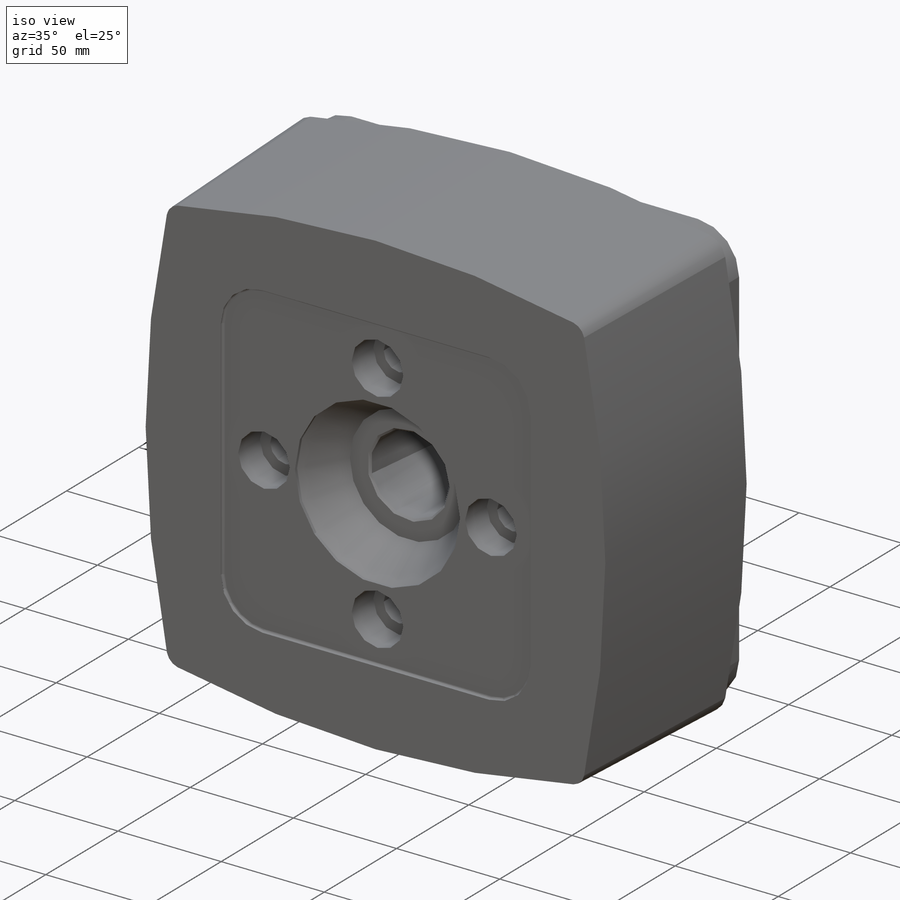
[diagram: iso view]
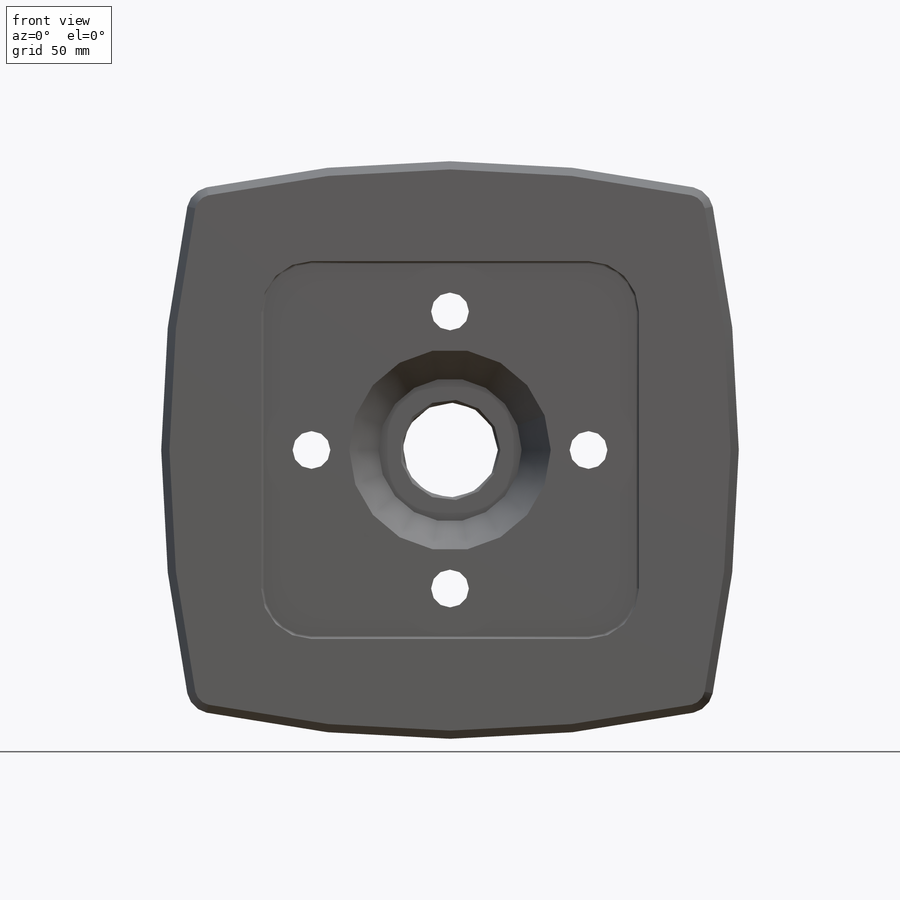
[diagram: front view]
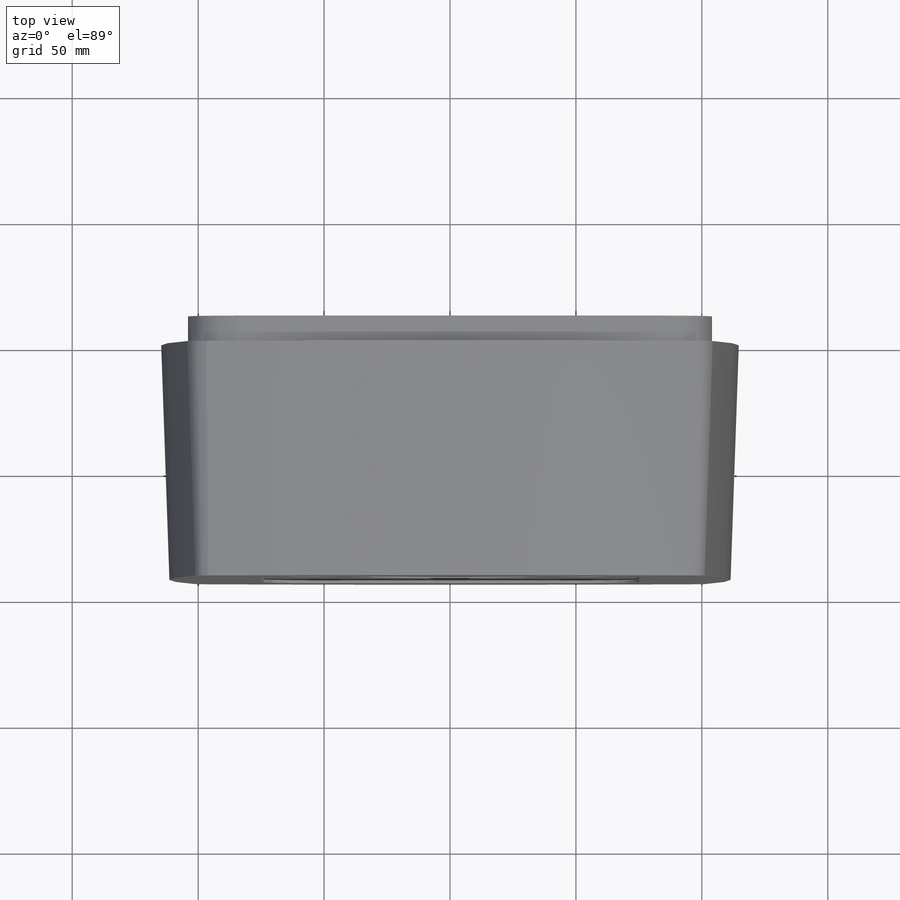
[diagram: top view]
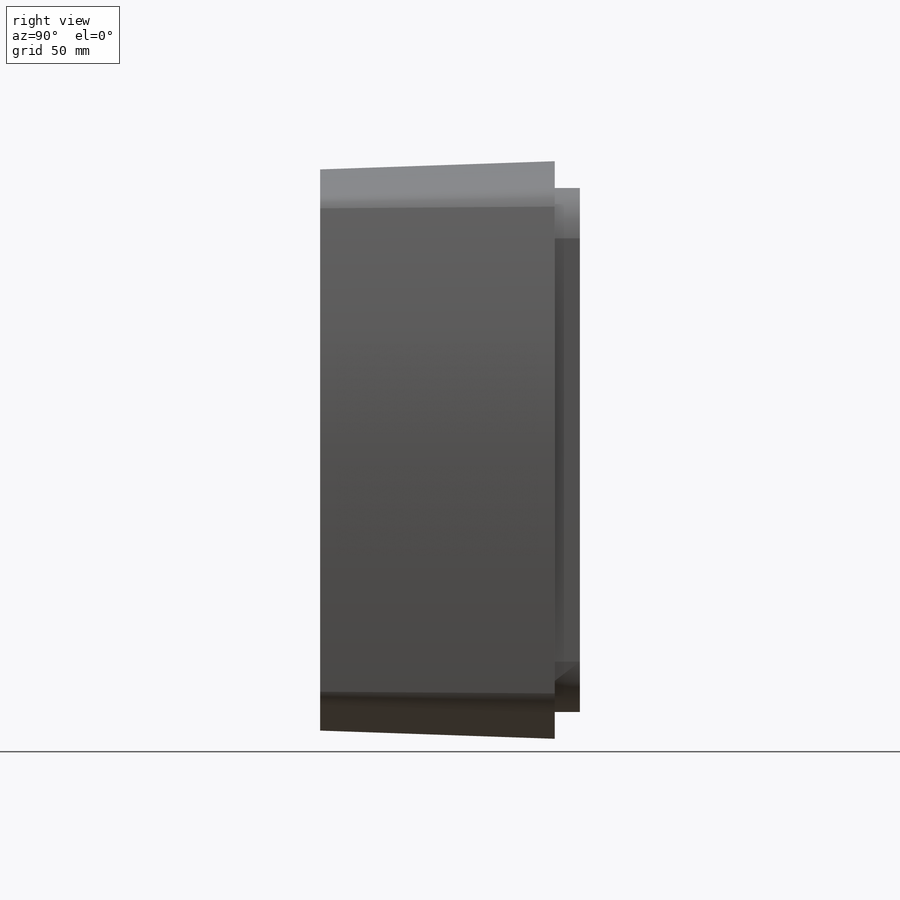
[diagram: right view]
SOLIDWORKS PART (.sldprt)
format: sldprt  version: not decoded by parser v0  size: 528,384 bytes
history: native  units: mm
features: sketch x15, cut_extrude x13, extrude x2, material x1, fillet x1, chamfer x1 (+13 scaffold rows collapsed)
feature tree (46):
  scaffold x13  (default folders/planes/origin — collapsed)
  material  "Material <not specified>"
  sketch  "Sketch1"  dims[D5=10.0mm D1=114.66mm D2=114.66mm D3=114.66mm D4=114.66mm]
  extrude  "Extrude1"  Depth=93.15mm
  sketch  "Sketch2"  dims[c1.D5=20.0mm c1.D1=40.0mm c1.D2=40.0mm c1.D3=40.0mm c1.D4=80.0mm c2.D1=75.0mm c2.D2=75.0mm c2.D3=75.0mm c2.D4=75.0mm c2.D5=150.0mm]
  cut_extrude  "Cut-Extrude1"  Depth=1.37mm
  fillet  "Fillet1"  Radius=1mm
  sketch  "Sketch3"  dims[D1=~37.906233mm]
  cut_extrude  "Cut-Extrude2"  Depth=1.5mm
  sketch  "Sketch4"  dims[D1=~12.002975mm]
  cut_extrude  "Cut-Extrude3"  Depth=175.5mm
  sketch  "Sketch5"  dims[D1=~38.957025mm]
  cut_extrude  "Cut-Extrude4"  Depth=20mm
  chamfer  "Chamfer1"  Distance=1mm Angle=45deg
  sketch  "Sketch6"  dims[D5=20.0mm D1=104.0mm D2=104.0mm D3=104.0mm D4=104.0mm]
  extrude  "Extrude2"  Depth=10mm
  sketch  "Sketch7"  dims[D1=~15.372231mm]
  cut_extrude  "Cut-Extrude5"  Depth=77mm
  sketch  "Sketch8"  dims[D1=~9.622309mm]
  cut_extrude  "Cut-Extrude6"  Depth=15mm
  sketch  "Sketch9"  dims[D1=~6.356364mm]
  cut_extrude  "Cut-Extrude7"  Depth=15mm
  sketch  "Sketch10"  dims[D1=~9.304463mm]
  cut_extrude  "Cut-Extrude8"  Depth=201mm
  sketch  "Sketch11"  dims[D1=~6.717686mm]
  cut_extrude  "Cut-Extrude9"  Depth=1.5mm
  sketch  "Sketch12"  dims[D1=~4.235038mm]
  cut_extrude  "Cut-Extrude10"  Depth=70mm
  sketch  "Sketch13"  dims[D1=~5.944754mm]
  cut_extrude  "Cut-Extrude11"  Depth=80mm
  sketch  "Sketch14"  dims[D1=~8.001983mm]
  cut_extrude  "Cut-Extrude12"  Depth=40mm
  sketch  "Sketch15"  dims[D1=~4.000992mm]
  cut_extrude  "Cut-Extrude13"  Depth=40mm
decode coverage: 32 of 32 modeling features carry decoded parameters
note: ~ marks probable driven/reference dimensions
note: suppression state not decoded; provenance and decode notes live in map.json
